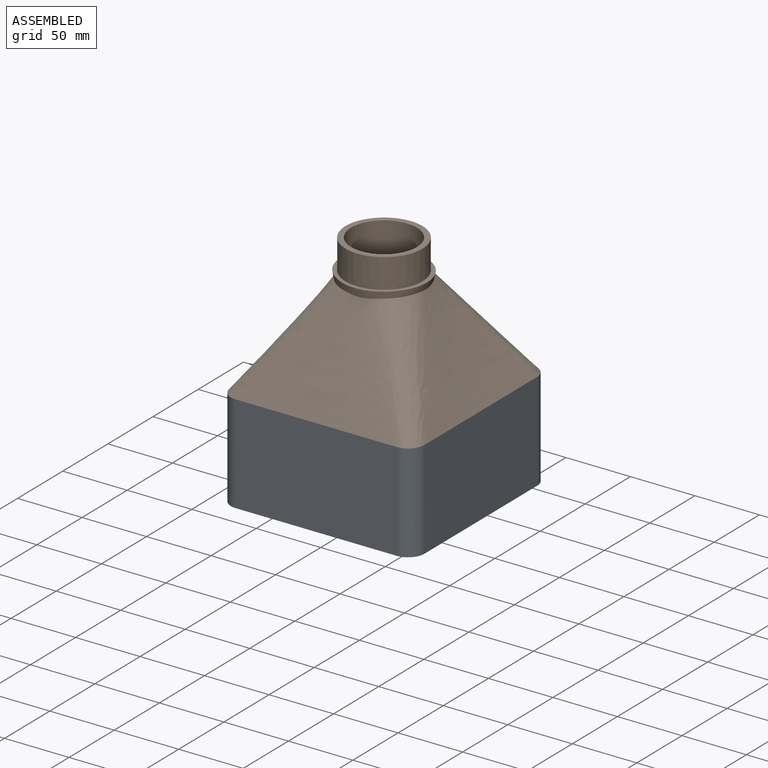
[diagram: assembled view]
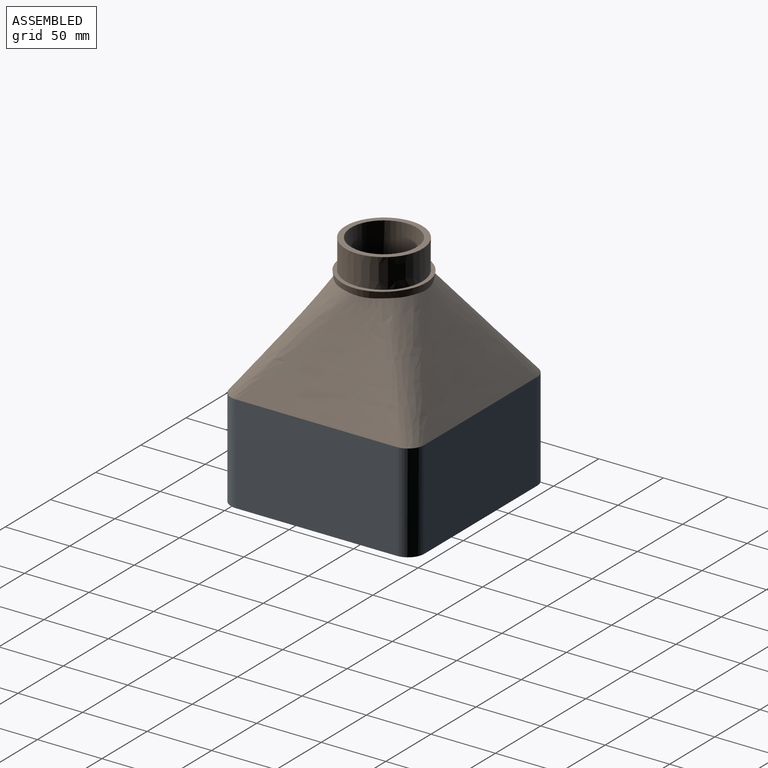
[diagram: assembled view, second angle]
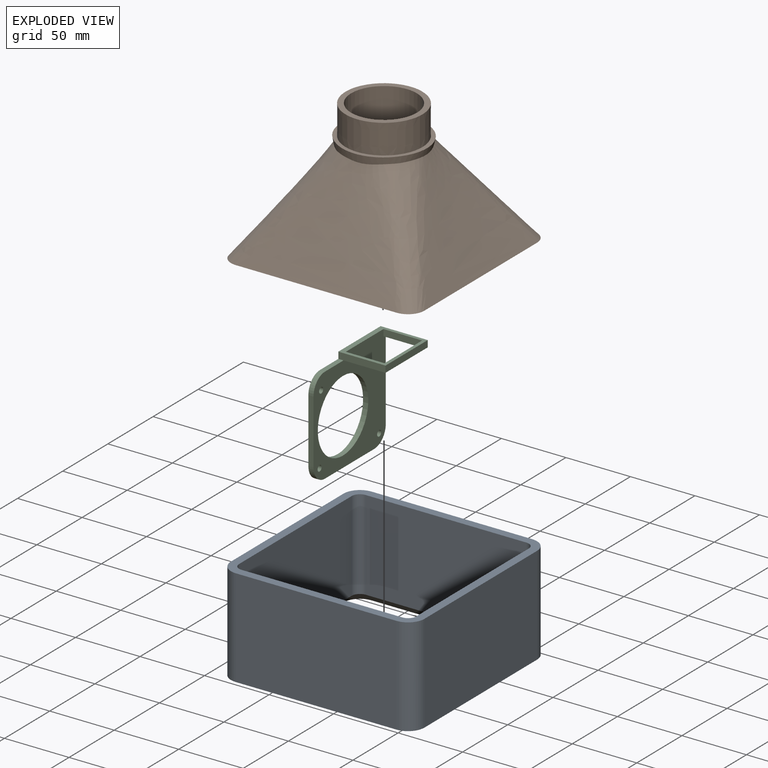
[diagram: exploded view]
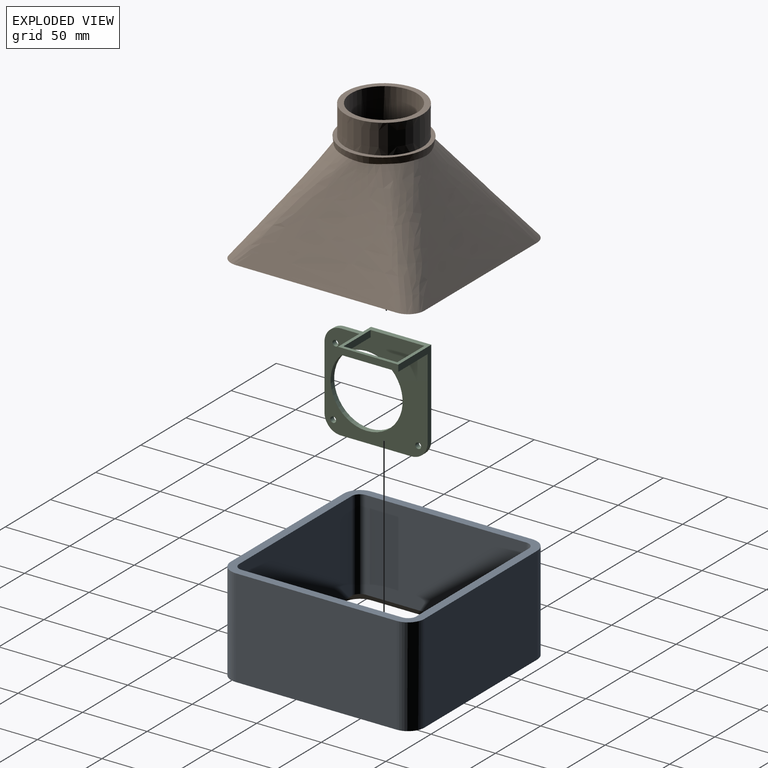
[diagram: exploded view, second angle]
ASSEMBLY  parts=3 mates=2
PART A: 25 faces, bbox 150x150x76.2 mm
  f0: plane 150x150mm, normal (0,0,1), area 3544.6mm2, adj f1,f2,f3,f4,f5,f6,f7,f8
  f1: cylinder r=12.7mm len=76.2mm, axis (0,0,1), area 1520.1mm2, adj f0,f2,f8,f23
  f2: plane 124.6x76.2mm, normal (1,0,0), area 9494.5mm2, adj f0,f1,f3,f21
  f3: cylinder r=12.7mm len=76.2mm, axis (0,0,1), area 1520.1mm2, adj f0,f2,f4,f19
  f4: plane 124.6x76.2mm, normal (0,-1,0), area 9494.5mm2, adj f0,f3,f5,f17
  f5: cylinder r=12.7mm len=76.2mm, axis (0,0,1), area 1520.1mm2, adj f0,f4,f6,f18
  f6: plane 124.6x76.2mm, normal (-1,0,0), area 9494.5mm2, adj f0,f5,f7,f20
  f7: cylinder r=12.7mm len=76.2mm, axis (0,0,1), area 1520.1mm2, adj f0,f6,f8,f22
  f8: plane 124.6x76.2mm, normal (0,1,0), area 9494.5mm2, adj f0,f1,f7,f24
  f9: plane 124.6x69.85mm, normal (1,0,0), area 8703.3mm2, adj f0,f10,f16,f20
  f10: cylinder r=6.35mm len=69.85mm, axis (0,0,-1), area 696.7mm2, adj f0,f9,f11,f18
  f11: plane 124.6x69.85mm, normal (0,1,0), area 8703.3mm2, adj f0,f10,f12,f17
  f12: cylinder r=6.35mm len=69.85mm, axis (0,0,-1), area 696.7mm2, adj f0,f11,f13,f19
  f13: plane 124.6x69.85mm, normal (-1,0,0), area 8703.3mm2, adj f0,f12,f14,f21
  f14: cylinder r=6.35mm len=69.85mm, axis (0,0,-1), area 696.7mm2, adj f0,f13,f15,f23
  f15: plane 124.6x69.85mm, normal (0,-1,0), area 8703.3mm2, adj f0,f14,f16,f24
  f16: cylinder r=6.35mm len=69.85mm, axis (0,0,-1), area 696.7mm2, adj f0,f9,f15,f22
  f17: plane 124.6x6.35mm, normal (0,0.71,-0.71), area 1118.9mm2, adj f4,f11,f18,f19
  f18: cone r=6.35mm half-angle=45deg, axis (0,0,-1), area 134.4mm2, adj f5,f10,f17,f20
  f19: cone r=6.35mm half-angle=45deg, axis (0,0,-1), area 134.4mm2, adj f3,f12,f17,f21
  f20: plane 124.6x6.35mm, normal (0.71,0,-0.71), area 1118.9mm2, adj f6,f9,f18,f22
  f21: plane 124.6x6.35mm, normal (-0.71,0,-0.71), area 1118.9mm2, adj f2,f13,f19,f23
  f22: cone r=6.35mm half-angle=45deg, axis (0,0,-1), area 134.4mm2, adj f7,f16,f20,f24
  f23: cone r=6.35mm half-angle=45deg, axis (0,0,-1), area 134.4mm2, adj f1,f14,f21,f24
  f24: plane 124.6x6.35mm, normal (0,-0.71,-0.71), area 1118.9mm2, adj f8,f15,f22,f23
PART B: 29 faces, bbox 177.2x177.2x128.8 mm
  f0: offset ~59.83x53.18mm, area 1636.6mm2, adj f1,f3,f8,f11
  f1: offset ~59.98x54.63mm, area 1922.5mm2, adj f0,f2,f8,f11
  f2: offset ~60.23x53.18mm, area 1636.6mm2, adj f1,f3,f8,f11
  f3: offset ~59.98x54.63mm, area 1922.5mm2, adj f0,f2,f8,f11
  f4: bspline ~51.43x47.31mm, area 1544.2mm2, adj f5,f7,f8,f9
  f5: bspline ~51.31x49.38mm, area 1862.1mm2, adj f4,f6,f8,f9
  f6: bspline ~51.31x47.31mm, area 1548.8mm2, adj f5,f7,f8,f9
  f7: bspline ~51.31x49.38mm, area 1862.1mm2, adj f4,f6,f8,f9
  f8: plane 48.01x36.44mm, normal (0,0,-1), area 397.3mm2, adj f0,f1,f2,f3,f4,f5,f6,f7
  f9: offset ~80.58x80.57mm, area 831.6mm2, adj f4,f5,f6,f7,f28
  f10: plane 164.52x164.52mm, normal (0,0,-1), area 630.4mm2, adj f11,f12
  f11: offset ~158.93x158.93mm, area 28005.9mm2, adj f0,f1,f2,f3,f10
  f12: plane 151.34x151.34mm, normal (0,0,-1), area 3544.6mm2, adj f10,f13
  f13: bspline ~150x150mm, area 34310.1mm2, adj f12,f14,f15,f16,f17
  f14: offset ~59.98x54.63mm, area 265.8mm2, adj f13,f15,f17,f18
  f15: offset ~60.23x53.18mm, area 259mm2, adj f13,f14,f16,f18
  f16: offset ~59.98x54.63mm, area 265.8mm2, adj f13,f15,f17,f18
  f17: offset ~59.83x53.18mm, area 262.6mm2, adj f13,f14,f16,f18
  f18: plane 67.44x66.72mm, normal (0,0,1), area 604.1mm2, adj f14,f15,f16,f17,f19,f20,f21,f22
  f19: extruded ~22.86x21.8mm, area 535.4mm2, adj f18,f20,f26,f27
  f20: extruded ~22.86x20.19mm, area 535.4mm2, adj f18,f19,f21,f27
  f21: extruded ~22.86x21.8mm, area 535.4mm2, adj f18,f20,f22,f27
  f22: extruded ~22.86x20.19mm, area 535.4mm2, adj f18,f21,f23,f27
  f23: extruded ~22.86x21.8mm, area 535.4mm2, adj f18,f22,f24,f27
  f24: extruded ~22.86x20.19mm, area 535.4mm2, adj f18,f23,f25,f27
  f25: extruded ~22.86x21.8mm, area 535.4mm2, adj f18,f24,f26,f27
  f26: extruded ~22.86x20.19mm, area 535.4mm2, adj f18,f19,f25,f27
  f27: plane 59.75x59.75mm, normal (0,0,1), area 751.4mm2, adj f19,f20,f21,f22,f23,f24,f25,f26
  f28: cylinder r=25.5mm len=50.99mm, axis (0,0,1), area 4863.1mm2, adj f9,f27
PART C: 20 faces, bbox 80.1x80x36.5 mm
  f0: plane 67.38x36.54mm, normal (0,1,0), area 434.8mm2, adj f8,f11,f12,f14,f15,f16
  f1: plane 20.52x4mm, normal (-1,0,0), area 82.1mm2, adj f2,f11,f12,f13
  f2: cylinder r=12.7mm len=12.7mm, axis (0,0,-1), area 79.8mm2, adj f1,f3,f11,f12
  f3: plane 49.6x4mm, normal (0,-1,0), area 198.4mm2, adj f2,f4,f11,f12
  f4: cylinder r=12.7mm len=12.7mm, axis (0,0,-1), area 79.8mm2, adj f3,f5,f11,f12
  f5: plane 54.6x4mm, normal (1,0,0), area 218.4mm2, adj f4,f8,f11,f12
  f6: cylinder r=2.25mm len=4.5mm, axis (0,0,-1), area 56.5mm2, adj f11,f12
  f7: cylinder r=2.25mm len=4.5mm, axis (0,0,-1), area 56.5mm2, adj f11,f12
  f8: cylinder r=12.7mm len=12.7mm, axis (0,0,-1), area 79.8mm2, adj f0,f5,f11,f12
  f9: cylinder r=27.94mm len=55.88mm, axis (0,0,-1), area 702.2mm2, adj f11,f12
  f10: cylinder r=2.25mm len=4.5mm, axis (0,0,-1), area 56.5mm2, adj f11,f12
  f11: plane 80.08x80mm, normal (0,0,1), area 3607.8mm2, adj f0,f1,f2,f3,f4,f5,f6,f7
  f12: plane 80.08x80mm, normal (0,0,-1), area 3633.6mm2, adj f0,f1,f2,f3,f4,f5,f6,f7
  f13: plane 36.54x5.08mm, normal (0,-1,0), area 185.6mm2, adj f1,f12,f14,f15,f16
  f14: plane 46.78x5.08mm, normal (0,0,1), area 237.6mm2, adj f0,f13,f15,f16
  f15: plane 46.78x36.54mm, normal (-1,0,0), area 458.3mm2, adj f0,f11,f12,f13,f14,f17,f18,f19
  f16: plane 46.78x32.54mm, normal (1,0,0), area 271.2mm2, adj f0,f11,f13,f14,f17,f18,f19
  f17: plane 30x5.08mm, normal (0,-1,0), area 152.4mm2, adj f11,f15,f16,f19
  f18: plane 30x5.08mm, normal (0,1,0), area 152.4mm2, adj f11,f15,f16,f19
  f19: plane 41.7x5.08mm, normal (0,0,-1), area 211.8mm2, adj f15,f16,f17,f18
PLACE A t=(-10.7,-28.87,-20.08)mm
PLACE B t=(-10.7,-28.87,-20.08)mm
PLACE C rot(axis=(0,1,0),90deg) t=(-29.67,-49.5,-55.14)mm
MATE fastened A.f7 <-> B.f10  axis (0,0,1) through (-73,33.43,-20.08)mm
MATE fastened B.f8 <-> C.f15  axis (0,0,-1) through (6.87,-52.28,5.32)mm
